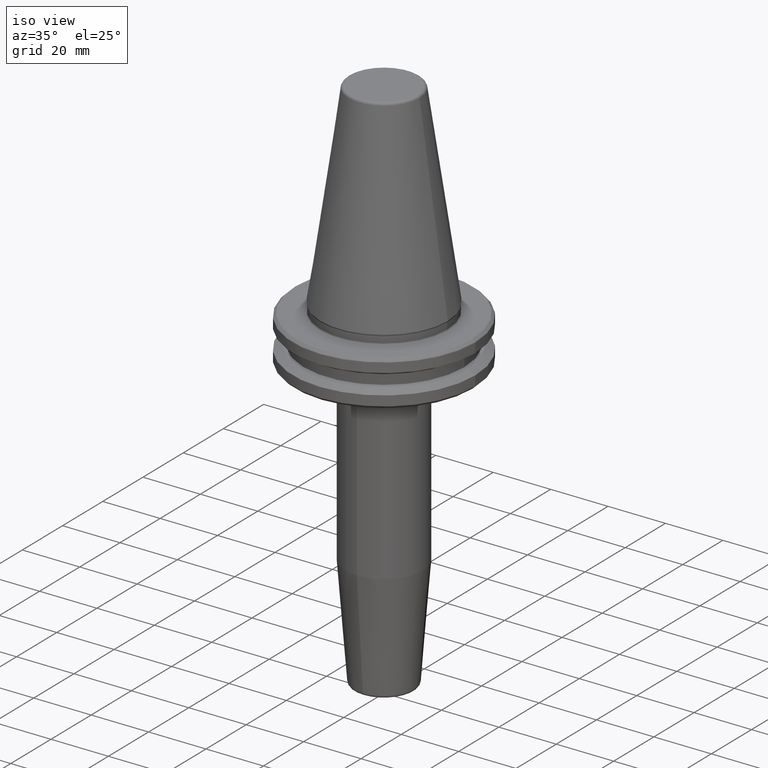
[diagram: clean part render]
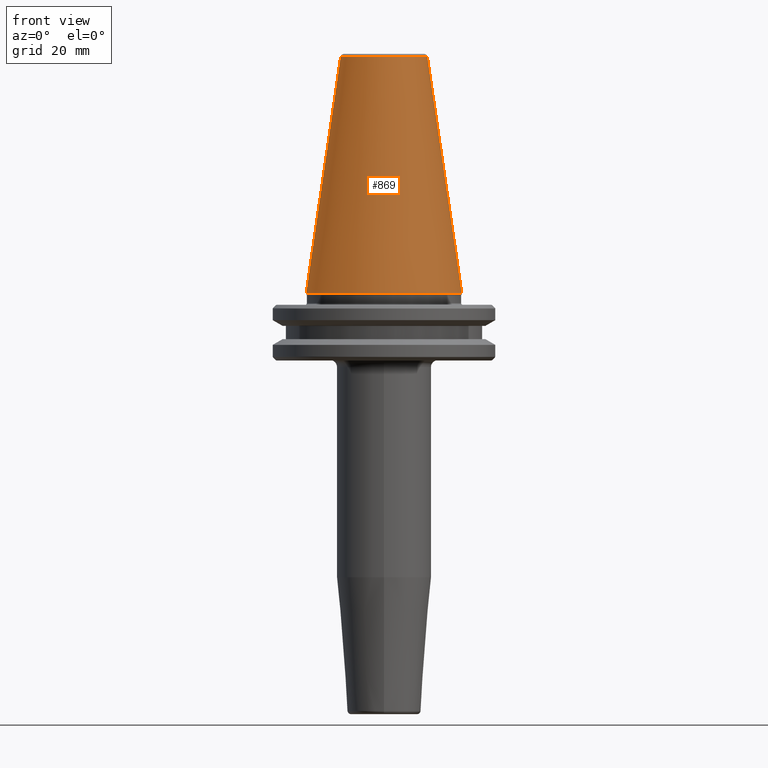
[diagram: tour spotlight — one face highlighted and labeled with its STEP entity id]
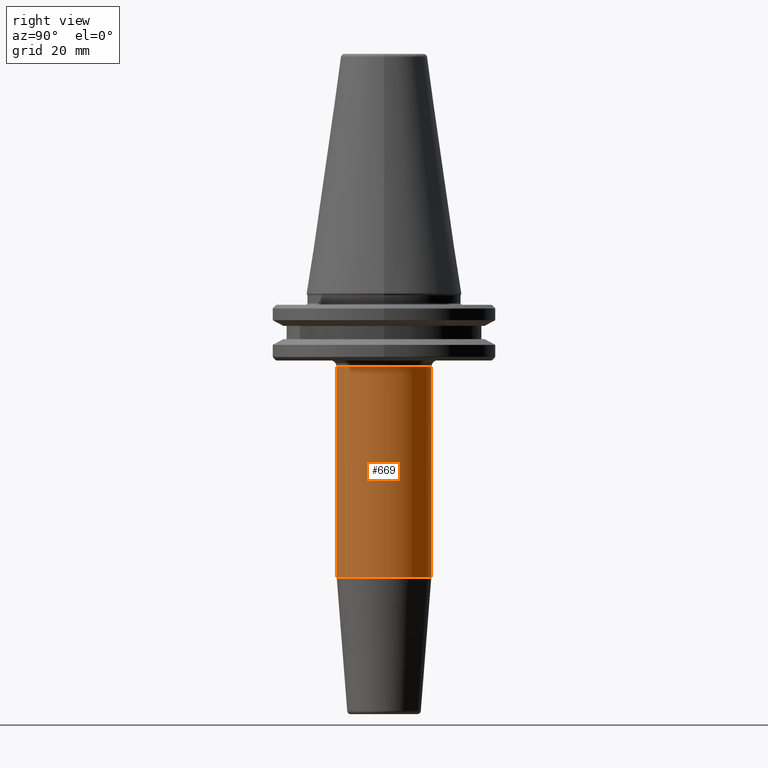
[diagram: tour spotlight — one face highlighted and labeled with its STEP entity id]
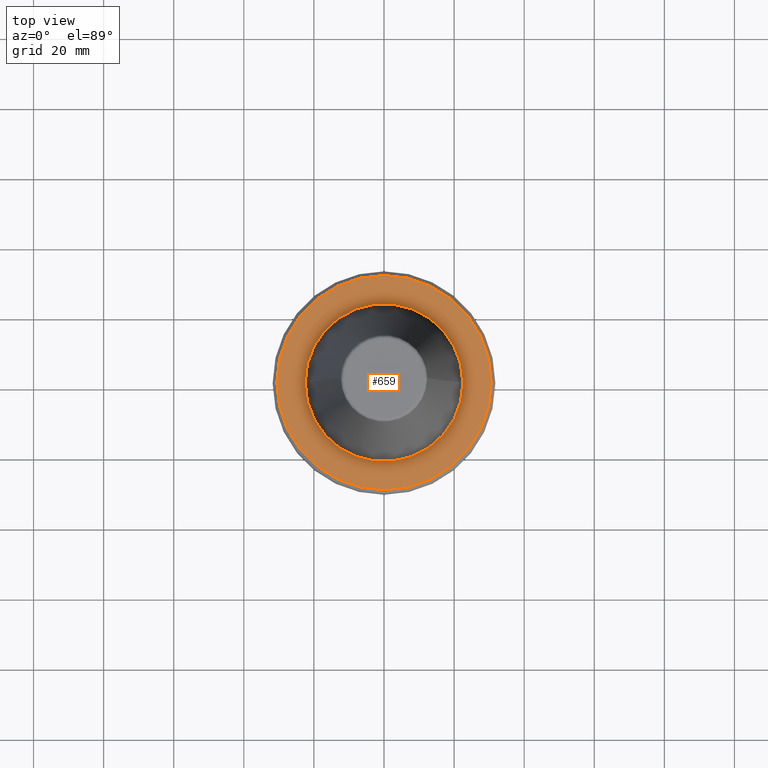
[diagram: tour spotlight — one face highlighted and labeled with its STEP entity id]
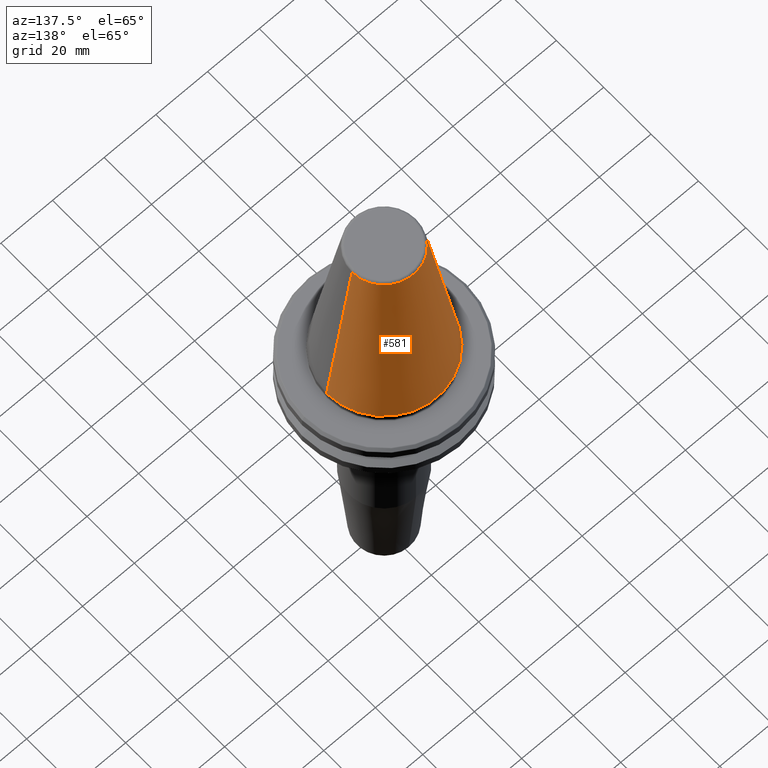
[diagram: tour spotlight — one face highlighted and labeled with its STEP entity id]
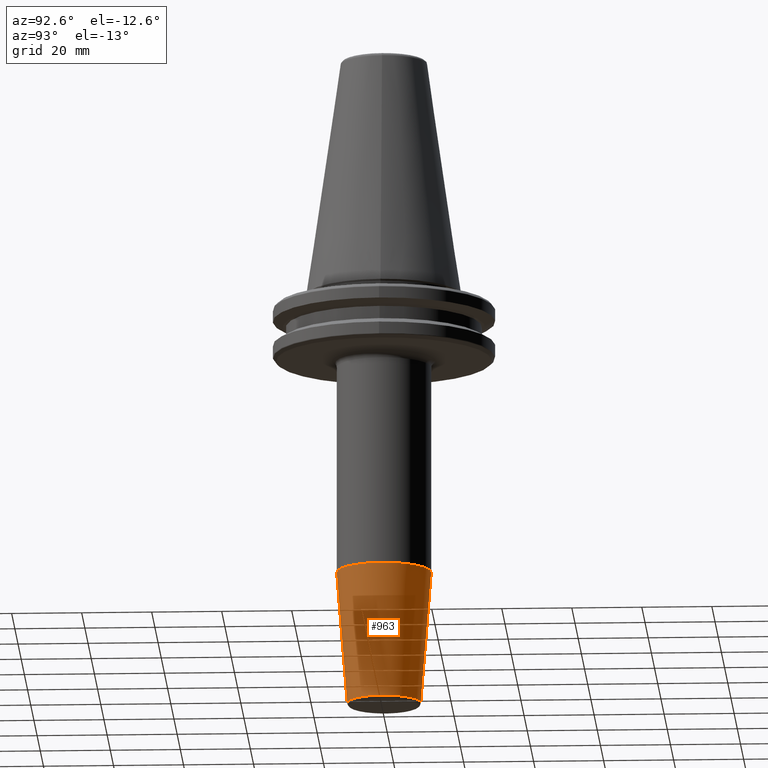
[diagram: tour spotlight — one face highlighted and labeled with its STEP entity id]
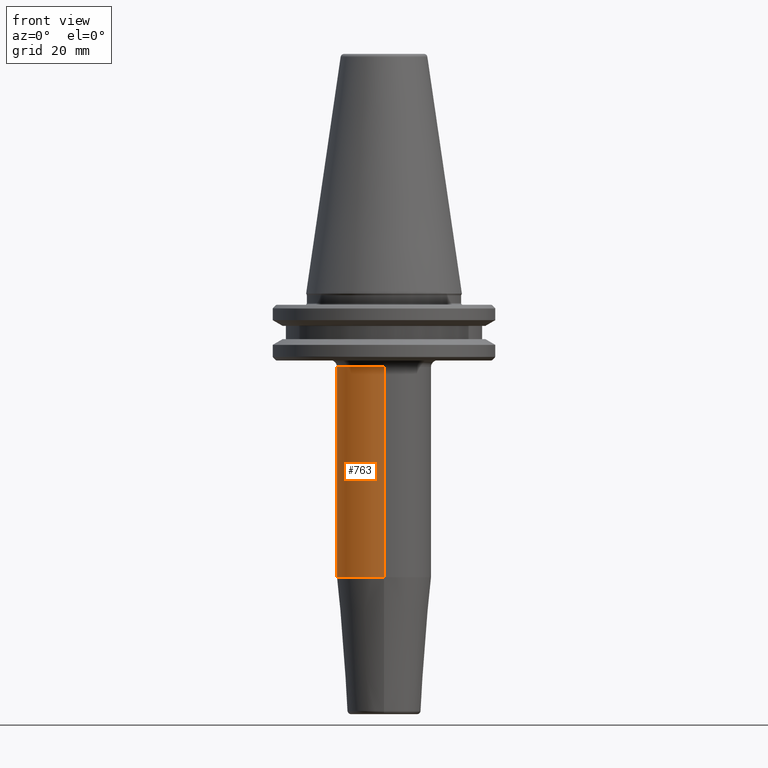
[diagram: tour spotlight — one face highlighted and labeled with its STEP entity id]
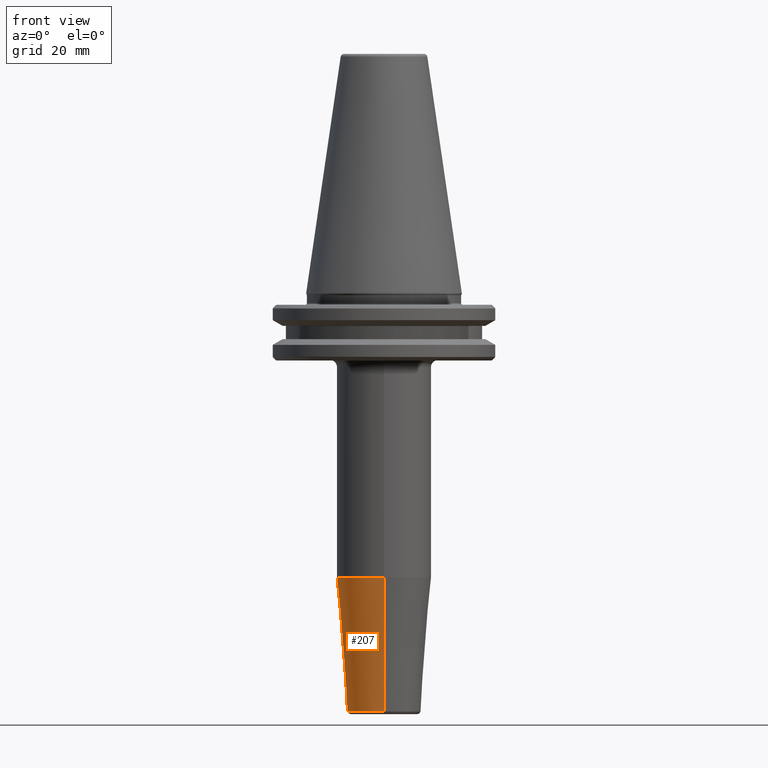
[diagram: tour spotlight — one face highlighted and labeled with its STEP entity id]
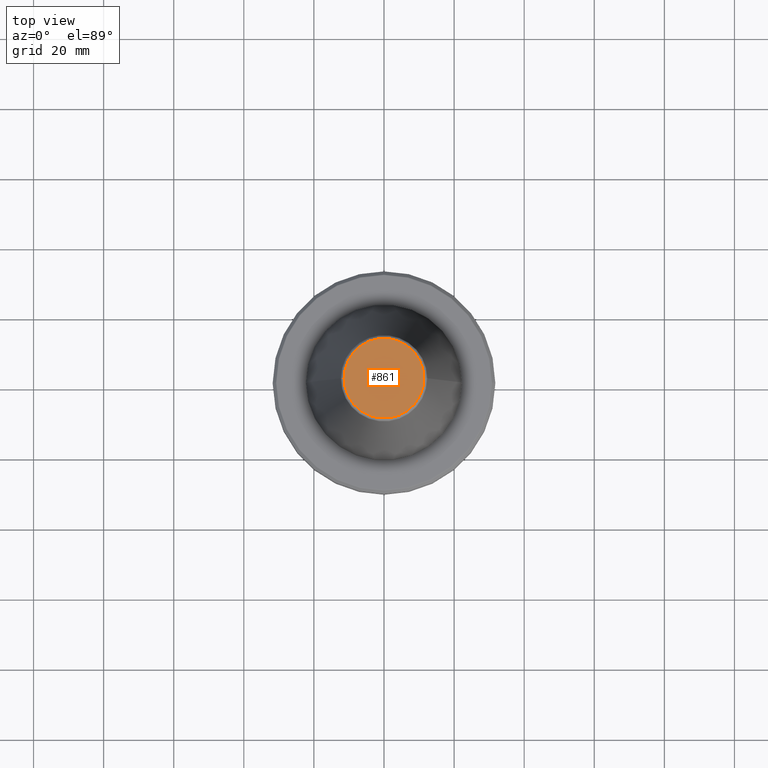
[diagram: tour spotlight — one face highlighted and labeled with its STEP entity id]
A machine part: a face-by-face anatomy tour. The part has 46 B-rep faces; the first image is the clean iso view, then the 8 largest visible faces are spotlighted one at a time (largest first), each with its STEP entity span.

Face 1 — front view, entity #869. In plain terms, the highlighted conical surface has half-angle 8.297 deg.
Definition (entity closure, byte-faithful):
#80 = ORIENTED_EDGE ( 'NONE', *, *, #658, .F. ) ;
#128 = DIRECTION ( 'NONE',  ( -1.000000000000000000, 0.0000000000000000000, 0.0000000000000000000 ) ) ;
#160 = CIRCLE ( 'NONE', #881, 22.22500000000000500 ) ;
#189 = ORIENTED_EDGE ( 'NONE', *, *, #1244, .F. ) ;
#209 = VERTEX_POINT ( 'NONE', #541 ) ;
#215 = CARTESIAN_POINT ( 'NONE',  ( 12.37469537611110800, 2.118620309691397700E-015, 67.54430822726729400 ) ) ;
#231 = CARTESIAN_POINT ( 'NONE',  ( -12.37469537611110800, 0.0000000000000000000, 67.54430822726729400 ) ) ;
#232 = CARTESIAN_POINT ( 'NONE',  ( 0.0000000000000000000, 0.0000000000000000000, 67.54430822726729400 ) ) ;
#237 = DIRECTION ( 'NONE',  ( -0.0000000000000000000, -0.0000000000000000000, 1.000000000000000000 ) ) ;
#333 = CONICAL_SURFACE ( 'NONE', #575, 12.37469537611110800, 0.1448138465474191100 ) ;
#337 = DIRECTION ( 'NONE',  ( 0.0000000000000000000, 0.0000000000000000000, -1.000000000000000000 ) ) ;
#491 = ORIENTED_EDGE ( 'NONE', *, *, #1089, .T. ) ;
#527 = AXIS2_PLACEMENT_3D ( 'NONE', #546, #932, #940 ) ;
#541 = CARTESIAN_POINT ( 'NONE',  ( -22.22500000000000500, 2.721777511104993200E-015, 0.0000000000000000000 ) ) ;
#546 = CARTESIAN_POINT ( 'NONE',  ( 0.0000000000000000000, 0.0000000000000000000, 67.54430822726729400 ) ) ;
#571 = VERTEX_POINT ( 'NONE', #885 ) ;
#575 = AXIS2_PLACEMENT_3D ( 'NONE', #232, #337, #128 ) ;
#632 = VERTEX_POINT ( 'NONE', #215 ) ;
#641 = DIRECTION ( 'NONE',  ( 0.1443082272673071000, 1.767266086135364600E-017, -0.9895327864921743500 ) ) ;
#658 = EDGE_CURVE ( 'NONE', #1099, #632, #1083, .T. ) ;
#665 = VECTOR ( 'NONE', #641, 1000.000000000000000 ) ;
#683 = LINE ( 'NONE', #231, #922 ) ;
#712 = CARTESIAN_POINT ( 'NONE',  ( -12.37469537611110800, 0.0000000000000000000, 67.54430822726729400 ) ) ;
#806 = EDGE_LOOP ( 'NONE', ( #189, #80, #491, #852 ) ) ;
#828 = CARTESIAN_POINT ( 'NONE',  ( 0.0000000000000000000, 0.0000000000000000000, 0.0000000000000000000 ) ) ;
#852 = ORIENTED_EDGE ( 'NONE', *, *, #1104, .T. ) ;
#869 = ADVANCED_FACE ( 'NONE', ( #1136 ), #333, .T. ) ;
#881 = AXIS2_PLACEMENT_3D ( 'NONE', #828, #237, #919 ) ;
#885 = CARTESIAN_POINT ( 'NONE',  ( 22.22500000000000500, 0.0000000000000000000, 0.0000000000000000000 ) ) ;
#914 = DIRECTION ( 'NONE',  ( -0.1443082272673071000, 0.0000000000000000000, -0.9895327864921743500 ) ) ;
#919 = DIRECTION ( 'NONE',  ( 1.000000000000000000, 0.0000000000000000000, 0.0000000000000000000 ) ) ;
#922 = VECTOR ( 'NONE', #914, 1000.000000000000000 ) ;
#930 = CARTESIAN_POINT ( 'NONE',  ( 12.37469537611110800, 1.515463108277802100E-015, 67.54430822726729400 ) ) ;
#932 = DIRECTION ( 'NONE',  ( -0.0000000000000000000, -0.0000000000000000000, 1.000000000000000000 ) ) ;
#940 = DIRECTION ( 'NONE',  ( 1.000000000000000000, 0.0000000000000000000, 0.0000000000000000000 ) ) ;
#1083 = CIRCLE ( 'NONE', #527, 12.37469537611110800 ) ;
#1089 = EDGE_CURVE ( 'NONE', #1099, #209, #683, .T. ) ;
#1099 = VERTEX_POINT ( 'NONE', #712 ) ;
#1104 = EDGE_CURVE ( 'NONE', #209, #571, #160, .T. ) ;
#1136 = FACE_OUTER_BOUND ( 'NONE', #806, .T. ) ;
#1171 = LINE ( 'NONE', #930, #665 ) ;
#1244 = EDGE_CURVE ( 'NONE', #632, #571, #1171, .T. ) ;

Face 2 — right view, entity #669. In plain terms, the highlighted cylindrical surface (partial cylindrical patch) has radius 13.5 mm, axis along (-0, 0, -1).
Definition (entity closure, byte-faithful):
#7 = CARTESIAN_POINT ( 'NONE',  ( 0.0000000000000000000, -5.204200571937971300E-015, -80.95984488719962300 ) ) ;
#10 = EDGE_CURVE ( 'NONE', #1130, #257, #114, .T. ) ;
#12 = CARTESIAN_POINT ( 'NONE',  ( 1.653273178848928400E-015, -13.50000000000001100, -120.0000000000000000 ) ) ;
#48 = EDGE_CURVE ( 'NONE', #257, #296, #900, .T. ) ;
#56 = AXIS2_PLACEMENT_3D ( 'NONE', #860, #1046, #467 ) ;
#93 = LINE ( 'NONE', #12, #625 ) ;
#102 = DIRECTION ( 'NONE',  ( -0.0000000000000000000, 1.946757673717420000E-016, -1.000000000000000000 ) ) ;
#114 = LINE ( 'NONE', #391, #1129 ) ;
#131 = AXIS2_PLACEMENT_3D ( 'NONE', #158, #566, #1140 ) ;
#145 = AXIS2_PLACEMENT_3D ( 'NONE', #7, #770, #1065 ) ;
#158 = CARTESIAN_POINT ( 'NONE',  ( 0.0000000000000000000, -1.688026949495919900E-014, -20.98284271247460700 ) ) ;
#181 = ORIENTED_EDGE ( 'NONE', *, *, #10, .F. ) ;
#257 = VERTEX_POINT ( 'NONE', #518 ) ;
#268 = EDGE_LOOP ( 'NONE', ( #944, #752, #644, #181 ) ) ;
#296 = VERTEX_POINT ( 'NONE', #1048 ) ;
#391 = CARTESIAN_POINT ( 'NONE',  ( 0.0000000000000000000, 13.50000000000001400, -120.0000000000000000 ) ) ;
#467 = DIRECTION ( 'NONE',  ( 0.0000000000000000000, 1.000000000000000000, 0.0000000000000000000 ) ) ;
#492 = EDGE_CURVE ( 'NONE', #681, #296, #93, .T. ) ;
#518 = CARTESIAN_POINT ( 'NONE',  ( 1.653273178848927500E-015, 13.50000000000000000, -80.95984488719962300 ) ) ;
#547 = FACE_OUTER_BOUND ( 'NONE', #268, .T. ) ;
#566 = DIRECTION ( 'NONE',  ( -0.0000000000000000000, 1.946757673717420000E-016, -1.000000000000000000 ) ) ;
#583 = DIRECTION ( 'NONE',  ( -0.0000000000000000000, 1.946757673717420000E-016, -1.000000000000000000 ) ) ;
#625 = VECTOR ( 'NONE', #102, 1000.000000000000000 ) ;
#644 = ORIENTED_EDGE ( 'NONE', *, *, #48, .F. ) ;
#664 = EDGE_CURVE ( 'NONE', #1130, #681, #800, .T. ) ;
#669 = ADVANCED_FACE ( 'NONE', ( #547 ), #1033, .T. ) ;
#681 = VERTEX_POINT ( 'NONE', #1259 ) ;
#752 = ORIENTED_EDGE ( 'NONE', *, *, #492, .T. ) ;
#770 = DIRECTION ( 'NONE',  ( -0.0000000000000000000, 1.946757673717420000E-016, -1.000000000000000000 ) ) ;
#800 = CIRCLE ( 'NONE', #131, 13.50000000000001800 ) ;
#860 = CARTESIAN_POINT ( 'NONE',  ( 0.0000000000000000000, 2.395971582958279500E-015, -120.0000000000000000 ) ) ;
#900 = CIRCLE ( 'NONE', #145, 13.50000000000000500 ) ;
#944 = ORIENTED_EDGE ( 'NONE', *, *, #664, .T. ) ;
#1033 = CYLINDRICAL_SURFACE ( 'NONE', #56, 13.50000000000001200 ) ;
#1046 = DIRECTION ( 'NONE',  ( -0.0000000000000000000, 1.946757673717420000E-016, -1.000000000000000000 ) ) ;
#1048 = CARTESIAN_POINT ( 'NONE',  ( 0.0000000000000000000, -13.50000000000001100, -80.95984488719962300 ) ) ;
#1065 = DIRECTION ( 'NONE',  ( 0.0000000000000000000, 1.000000000000000000, 0.0000000000000000000 ) ) ;
#1129 = VECTOR ( 'NONE', #583, 1000.000000000000000 ) ;
#1130 = VERTEX_POINT ( 'NONE', #1206 ) ;
#1140 = DIRECTION ( 'NONE',  ( 0.0000000000000000000, 1.000000000000000000, 2.569960705150821900E-016 ) ) ;
#1206 = CARTESIAN_POINT ( 'NONE',  ( 0.0000000000000000000, 13.50000000000000000, -20.98284271247460400 ) ) ;
#1259 = CARTESIAN_POINT ( 'NONE',  ( 1.653273178848929800E-015, -13.50000000000003400, -20.98284271247461100 ) ) ;

Face 3 — top view, entity #659. In plain terms, the highlighted planar face has unit normal (0, -0, 1).
Definition (entity closure, byte-faithful):
#3 = CARTESIAN_POINT ( 'NONE',  ( 0.0000000000000000000, 0.0000000000000000000, -3.199999999999994400 ) ) ;
#14 = CIRCLE ( 'NONE', #68, 22.50000000000000000 ) ;
#68 = AXIS2_PLACEMENT_3D ( 'NONE', #3, #186, #395 ) ;
#78 = FACE_BOUND ( 'NONE', #508, .T. ) ;
#82 = DIRECTION ( 'NONE',  ( 0.0000000000000000000, -0.0000000000000000000, 1.000000000000000000 ) ) ;
#111 = CARTESIAN_POINT ( 'NONE',  ( 30.58431457505076200, 0.0000000000000000000, -3.199999999999994400 ) ) ;
#132 = AXIS2_PLACEMENT_3D ( 'NONE', #525, #1191, #627 ) ;
#141 = DIRECTION ( 'NONE',  ( 1.000000000000000000, 0.0000000000000000000, 0.0000000000000000000 ) ) ;
#163 = FACE_OUTER_BOUND ( 'NONE', #396, .T. ) ;
#185 = VERTEX_POINT ( 'NONE', #1100 ) ;
#186 = DIRECTION ( 'NONE',  ( -0.0000000000000000000, -0.0000000000000000000, 1.000000000000000000 ) ) ;
#315 = CARTESIAN_POINT ( 'NONE',  ( -22.50000000000000000, 2.755455298081544800E-015, -3.199999999999996600 ) ) ;
#353 = EDGE_CURVE ( 'NONE', #968, #693, #1072, .T. ) ;
#357 = CARTESIAN_POINT ( 'NONE',  ( 0.0000000000000000000, 0.0000000000000000000, -3.199999999999994400 ) ) ;
#378 = AXIS2_PLACEMENT_3D ( 'NONE', #513, #995, #1069 ) ;
#381 = DIRECTION ( 'NONE',  ( 1.000000000000000000, 0.0000000000000000000, 0.0000000000000000000 ) ) ;
#395 = DIRECTION ( 'NONE',  ( 1.000000000000000000, 0.0000000000000000000, 0.0000000000000000000 ) ) ;
#396 = EDGE_LOOP ( 'NONE', ( #965, #1005 ) ) ;
#409 = AXIS2_PLACEMENT_3D ( 'NONE', #739, #82, #381 ) ;
#508 = EDGE_LOOP ( 'NONE', ( #969, #720 ) ) ;
#513 = CARTESIAN_POINT ( 'NONE',  ( 0.0000000000000000000, 0.0000000000000000000, -3.199999999999994400 ) ) ;
#525 = CARTESIAN_POINT ( 'NONE',  ( 0.0000000000000000000, 0.0000000000000000000, -3.199999999999994400 ) ) ;
#569 = CARTESIAN_POINT ( 'NONE',  ( 22.50000000000000000, 0.0000000000000000000, -3.199999999999996600 ) ) ;
#611 = AXIS2_PLACEMENT_3D ( 'NONE', #357, #837, #141 ) ;
#627 = DIRECTION ( 'NONE',  ( 1.000000000000000000, 0.0000000000000000000, 0.0000000000000000000 ) ) ;
#650 = EDGE_CURVE ( 'NONE', #1013, #185, #928, .T. ) ;
#659 = ADVANCED_FACE ( 'NONE', ( #163, #78 ), #733, .T. ) ;
#673 = EDGE_CURVE ( 'NONE', #693, #968, #14, .T. ) ;
#693 = VERTEX_POINT ( 'NONE', #569 ) ;
#720 = ORIENTED_EDGE ( 'NONE', *, *, #353, .F. ) ;
#733 = PLANE ( 'NONE',  #409 ) ;
#739 = CARTESIAN_POINT ( 'NONE',  ( 0.0000000000000000000, 0.0000000000000000000, -3.200000000000000200 ) ) ;
#837 = DIRECTION ( 'NONE',  ( -0.0000000000000000000, -0.0000000000000000000, 1.000000000000000000 ) ) ;
#928 = CIRCLE ( 'NONE', #611, 30.58431457505076200 ) ;
#965 = ORIENTED_EDGE ( 'NONE', *, *, #650, .T. ) ;
#968 = VERTEX_POINT ( 'NONE', #315 ) ;
#969 = ORIENTED_EDGE ( 'NONE', *, *, #673, .F. ) ;
#995 = DIRECTION ( 'NONE',  ( -0.0000000000000000000, -0.0000000000000000000, 1.000000000000000000 ) ) ;
#1005 = ORIENTED_EDGE ( 'NONE', *, *, #1080, .T. ) ;
#1013 = VERTEX_POINT ( 'NONE', #111 ) ;
#1069 = DIRECTION ( 'NONE',  ( 1.000000000000000000, 0.0000000000000000000, 0.0000000000000000000 ) ) ;
#1072 = CIRCLE ( 'NONE', #378, 22.50000000000000000 ) ;
#1080 = EDGE_CURVE ( 'NONE', #185, #1013, #1204, .T. ) ;
#1100 = CARTESIAN_POINT ( 'NONE',  ( -30.58431457505076200, 3.762817415969875600E-015, -3.199999999999994400 ) ) ;
#1191 = DIRECTION ( 'NONE',  ( -0.0000000000000000000, -0.0000000000000000000, 1.000000000000000000 ) ) ;
#1204 = CIRCLE ( 'NONE', #132, 30.58431457505076200 ) ;

Face 4 — auxiliary view, entity #581. In plain terms, the highlighted conical surface has half-angle 8.297 deg.
Definition (entity closure, byte-faithful):
#11 = DIRECTION ( 'NONE',  ( -0.0000000000000000000, -0.0000000000000000000, 1.000000000000000000 ) ) ;
#26 = DIRECTION ( 'NONE',  ( -0.0000000000000000000, -0.0000000000000000000, 1.000000000000000000 ) ) ;
#31 = EDGE_LOOP ( 'NONE', ( #1245, #1256, #892, #129 ) ) ;
#36 = FACE_OUTER_BOUND ( 'NONE', #31, .T. ) ;
#129 = ORIENTED_EDGE ( 'NONE', *, *, #1089, .F. ) ;
#190 = AXIS2_PLACEMENT_3D ( 'NONE', #619, #26, #707 ) ;
#209 = VERTEX_POINT ( 'NONE', #541 ) ;
#215 = CARTESIAN_POINT ( 'NONE',  ( 12.37469537611110800, 2.118620309691397700E-015, 67.54430822726729400 ) ) ;
#231 = CARTESIAN_POINT ( 'NONE',  ( -12.37469537611110800, 0.0000000000000000000, 67.54430822726729400 ) ) ;
#469 = CIRCLE ( 'NONE', #190, 22.22500000000000500 ) ;
#482 = EDGE_CURVE ( 'NONE', #632, #1099, #1137, .T. ) ;
#506 = DIRECTION ( 'NONE',  ( 1.000000000000000000, 0.0000000000000000000, 0.0000000000000000000 ) ) ;
#541 = CARTESIAN_POINT ( 'NONE',  ( -22.22500000000000500, 2.721777511104993200E-015, 0.0000000000000000000 ) ) ;
#571 = VERTEX_POINT ( 'NONE', #885 ) ;
#581 = ADVANCED_FACE ( 'NONE', ( #36 ), #1209, .T. ) ;
#619 = CARTESIAN_POINT ( 'NONE',  ( 0.0000000000000000000, 0.0000000000000000000, 0.0000000000000000000 ) ) ;
#632 = VERTEX_POINT ( 'NONE', #215 ) ;
#637 = DIRECTION ( 'NONE',  ( 0.0000000000000000000, 0.0000000000000000000, -1.000000000000000000 ) ) ;
#641 = DIRECTION ( 'NONE',  ( 0.1443082272673071000, 1.767266086135364600E-017, -0.9895327864921743500 ) ) ;
#645 = CARTESIAN_POINT ( 'NONE',  ( 0.0000000000000000000, 0.0000000000000000000, 67.54430822726729400 ) ) ;
#665 = VECTOR ( 'NONE', #641, 1000.000000000000000 ) ;
#683 = LINE ( 'NONE', #231, #922 ) ;
#707 = DIRECTION ( 'NONE',  ( 1.000000000000000000, 0.0000000000000000000, 0.0000000000000000000 ) ) ;
#712 = CARTESIAN_POINT ( 'NONE',  ( -12.37469537611110800, 0.0000000000000000000, 67.54430822726729400 ) ) ;
#867 = AXIS2_PLACEMENT_3D ( 'NONE', #645, #637, #1027 ) ;
#885 = CARTESIAN_POINT ( 'NONE',  ( 22.22500000000000500, 0.0000000000000000000, 0.0000000000000000000 ) ) ;
#886 = CARTESIAN_POINT ( 'NONE',  ( 0.0000000000000000000, 0.0000000000000000000, 67.54430822726729400 ) ) ;
#892 = ORIENTED_EDGE ( 'NONE', *, *, #1054, .T. ) ;
#914 = DIRECTION ( 'NONE',  ( -0.1443082272673071000, 0.0000000000000000000, -0.9895327864921743500 ) ) ;
#922 = VECTOR ( 'NONE', #914, 1000.000000000000000 ) ;
#930 = CARTESIAN_POINT ( 'NONE',  ( 12.37469537611110800, 1.515463108277802100E-015, 67.54430822726729400 ) ) ;
#1027 = DIRECTION ( 'NONE',  ( -1.000000000000000000, 0.0000000000000000000, 0.0000000000000000000 ) ) ;
#1054 = EDGE_CURVE ( 'NONE', #571, #209, #469, .T. ) ;
#1089 = EDGE_CURVE ( 'NONE', #1099, #209, #683, .T. ) ;
#1090 = AXIS2_PLACEMENT_3D ( 'NONE', #886, #11, #506 ) ;
#1099 = VERTEX_POINT ( 'NONE', #712 ) ;
#1137 = CIRCLE ( 'NONE', #1090, 12.37469537611110800 ) ;
#1171 = LINE ( 'NONE', #930, #665 ) ;
#1209 = CONICAL_SURFACE ( 'NONE', #867, 12.37469537611110800, 0.1448138465474191100 ) ;
#1244 = EDGE_CURVE ( 'NONE', #632, #571, #1171, .T. ) ;
#1245 = ORIENTED_EDGE ( 'NONE', *, *, #482, .F. ) ;
#1256 = ORIENTED_EDGE ( 'NONE', *, *, #1244, .T. ) ;

Face 5 — auxiliary view, entity #963. In plain terms, the highlighted conical surface has half-angle 4.5 deg.
Definition (entity closure, byte-faithful):
#7 = CARTESIAN_POINT ( 'NONE',  ( 0.0000000000000000000, -5.204200571937971300E-015, -80.95984488719962300 ) ) ;
#22 = CARTESIAN_POINT ( 'NONE',  ( 0.0000000000000000000, 2.216569900254646300E-015, -119.0784590957278200 ) ) ;
#29 = ORIENTED_EDGE ( 'NONE', *, *, #278, .T. ) ;
#48 = EDGE_CURVE ( 'NONE', #257, #296, #900, .T. ) ;
#71 = ORIENTED_EDGE ( 'NONE', *, *, #48, .T. ) ;
#94 = LINE ( 'NONE', #153, #1112 ) ;
#145 = AXIS2_PLACEMENT_3D ( 'NONE', #7, #770, #1065 ) ;
#153 = CARTESIAN_POINT ( 'NONE',  ( 0.0000000000000000000, -10.49999999999999600, -119.0784590957278200 ) ) ;
#227 = VECTOR ( 'NONE', #857, 1000.000000000000000 ) ;
#257 = VERTEX_POINT ( 'NONE', #518 ) ;
#270 = CONICAL_SURFACE ( 'NONE', #429, 10.49999999999999800, 0.07853981633973659800 ) ;
#272 = EDGE_CURVE ( 'NONE', #1059, #678, #1253, .T. ) ;
#278 = EDGE_CURVE ( 'NONE', #1059, #257, #465, .T. ) ;
#295 = EDGE_CURVE ( 'NONE', #678, #296, #94, .T. ) ;
#296 = VERTEX_POINT ( 'NONE', #1048 ) ;
#392 = ORIENTED_EDGE ( 'NONE', *, *, #272, .F. ) ;
#398 = CARTESIAN_POINT ( 'NONE',  ( 1.285879139104720600E-015, -10.49999999999999600, -119.0784590957278200 ) ) ;
#429 = AXIS2_PLACEMENT_3D ( 'NONE', #537, #1025, #935 ) ;
#465 = LINE ( 'NONE', #954, #227 ) ;
#518 = CARTESIAN_POINT ( 'NONE',  ( 1.653273178848927500E-015, 13.50000000000000000, -80.95984488719962300 ) ) ;
#537 = CARTESIAN_POINT ( 'NONE',  ( 0.0000000000000000000, 2.216569900254646300E-015, -119.0784590957278200 ) ) ;
#572 = DIRECTION ( 'NONE',  ( 0.0000000000000000000, -0.07845909572783693600, 0.9969173337331286300 ) ) ;
#674 = EDGE_LOOP ( 'NONE', ( #392, #29, #71, #942 ) ) ;
#678 = VERTEX_POINT ( 'NONE', #398 ) ;
#710 = DIRECTION ( 'NONE',  ( -0.0000000000000000000, 1.946757673717420000E-016, -1.000000000000000000 ) ) ;
#770 = DIRECTION ( 'NONE',  ( -0.0000000000000000000, 1.946757673717420000E-016, -1.000000000000000000 ) ) ;
#814 = CARTESIAN_POINT ( 'NONE',  ( 0.0000000000000000000, 10.50000000000000000, -119.0784590957278200 ) ) ;
#833 = AXIS2_PLACEMENT_3D ( 'NONE', #22, #710, #1120 ) ;
#857 = DIRECTION ( 'NONE',  ( 9.608468044709104300E-018, 0.07845909572783654800, 0.9969173337331286300 ) ) ;
#900 = CIRCLE ( 'NONE', #145, 13.50000000000000500 ) ;
#935 = DIRECTION ( 'NONE',  ( 0.0000000000000000000, -1.000000000000000000, 0.0000000000000000000 ) ) ;
#942 = ORIENTED_EDGE ( 'NONE', *, *, #295, .F. ) ;
#954 = CARTESIAN_POINT ( 'NONE',  ( 1.285879139104720600E-015, 10.50000000000000000, -119.0784590957278200 ) ) ;
#963 = ADVANCED_FACE ( 'NONE', ( #1106 ), #270, .T. ) ;
#1025 = DIRECTION ( 'NONE',  ( 0.0000000000000000000, -1.946757673717420000E-016, 1.000000000000000000 ) ) ;
#1048 = CARTESIAN_POINT ( 'NONE',  ( 0.0000000000000000000, -13.50000000000001100, -80.95984488719962300 ) ) ;
#1059 = VERTEX_POINT ( 'NONE', #814 ) ;
#1065 = DIRECTION ( 'NONE',  ( 0.0000000000000000000, 1.000000000000000000, 0.0000000000000000000 ) ) ;
#1106 = FACE_OUTER_BOUND ( 'NONE', #674, .T. ) ;
#1112 = VECTOR ( 'NONE', #572, 1000.000000000000000 ) ;
#1120 = DIRECTION ( 'NONE',  ( 0.0000000000000000000, 1.000000000000000000, 0.0000000000000000000 ) ) ;
#1253 = CIRCLE ( 'NONE', #833, 10.49999999999999800 ) ;

Face 6 — front view, entity #763. In plain terms, the highlighted cylindrical surface (partial cylindrical patch) has radius 13.5 mm, axis along (-0, 0, -1).
Definition (entity closure, byte-faithful):
#10 = EDGE_CURVE ( 'NONE', #1130, #257, #114, .T. ) ;
#12 = CARTESIAN_POINT ( 'NONE',  ( 1.653273178848928400E-015, -13.50000000000001100, -120.0000000000000000 ) ) ;
#42 = DIRECTION ( 'NONE',  ( 0.0000000000000000000, 1.000000000000000000, 0.0000000000000000000 ) ) ;
#57 = ORIENTED_EDGE ( 'NONE', *, *, #10, .T. ) ;
#64 = CIRCLE ( 'NONE', #554, 13.50000000000000500 ) ;
#93 = LINE ( 'NONE', #12, #625 ) ;
#102 = DIRECTION ( 'NONE',  ( -0.0000000000000000000, 1.946757673717420000E-016, -1.000000000000000000 ) ) ;
#114 = LINE ( 'NONE', #391, #1129 ) ;
#159 = ORIENTED_EDGE ( 'NONE', *, *, #471, .T. ) ;
#193 = CARTESIAN_POINT ( 'NONE',  ( 0.0000000000000000000, -1.688026949495919900E-014, -20.98284271247460700 ) ) ;
#199 = DIRECTION ( 'NONE',  ( -0.0000000000000000000, 1.946757673717420000E-016, -1.000000000000000000 ) ) ;
#241 = CIRCLE ( 'NONE', #1145, 13.50000000000001800 ) ;
#257 = VERTEX_POINT ( 'NONE', #518 ) ;
#296 = VERTEX_POINT ( 'NONE', #1048 ) ;
#391 = CARTESIAN_POINT ( 'NONE',  ( 0.0000000000000000000, 13.50000000000001400, -120.0000000000000000 ) ) ;
#407 = DIRECTION ( 'NONE',  ( 0.0000000000000000000, 1.000000000000000000, 2.569960705150821900E-016 ) ) ;
#432 = EDGE_LOOP ( 'NONE', ( #1017, #159, #57, #1250 ) ) ;
#471 = EDGE_CURVE ( 'NONE', #681, #1130, #241, .T. ) ;
#492 = EDGE_CURVE ( 'NONE', #681, #296, #93, .T. ) ;
#518 = CARTESIAN_POINT ( 'NONE',  ( 1.653273178848927500E-015, 13.50000000000000000, -80.95984488719962300 ) ) ;
#554 = AXIS2_PLACEMENT_3D ( 'NONE', #1207, #636, #42 ) ;
#583 = DIRECTION ( 'NONE',  ( -0.0000000000000000000, 1.946757673717420000E-016, -1.000000000000000000 ) ) ;
#604 = DIRECTION ( 'NONE',  ( 0.0000000000000000000, 1.000000000000000000, 0.0000000000000000000 ) ) ;
#625 = VECTOR ( 'NONE', #102, 1000.000000000000000 ) ;
#636 = DIRECTION ( 'NONE',  ( -0.0000000000000000000, 1.946757673717420000E-016, -1.000000000000000000 ) ) ;
#681 = VERTEX_POINT ( 'NONE', #1259 ) ;
#698 = CYLINDRICAL_SURFACE ( 'NONE', #1115, 13.50000000000001200 ) ;
#763 = ADVANCED_FACE ( 'NONE', ( #970 ), #698, .T. ) ;
#934 = EDGE_CURVE ( 'NONE', #296, #257, #64, .T. ) ;
#970 = FACE_OUTER_BOUND ( 'NONE', #432, .T. ) ;
#1017 = ORIENTED_EDGE ( 'NONE', *, *, #492, .F. ) ;
#1048 = CARTESIAN_POINT ( 'NONE',  ( 0.0000000000000000000, -13.50000000000001100, -80.95984488719962300 ) ) ;
#1087 = DIRECTION ( 'NONE',  ( -0.0000000000000000000, 1.946757673717420000E-016, -1.000000000000000000 ) ) ;
#1115 = AXIS2_PLACEMENT_3D ( 'NONE', #1173, #1087, #604 ) ;
#1129 = VECTOR ( 'NONE', #583, 1000.000000000000000 ) ;
#1130 = VERTEX_POINT ( 'NONE', #1206 ) ;
#1145 = AXIS2_PLACEMENT_3D ( 'NONE', #193, #199, #407 ) ;
#1173 = CARTESIAN_POINT ( 'NONE',  ( 0.0000000000000000000, 2.395971582958279500E-015, -120.0000000000000000 ) ) ;
#1206 = CARTESIAN_POINT ( 'NONE',  ( 0.0000000000000000000, 13.50000000000000000, -20.98284271247460400 ) ) ;
#1207 = CARTESIAN_POINT ( 'NONE',  ( 0.0000000000000000000, -5.204200571937971300E-015, -80.95984488719962300 ) ) ;
#1250 = ORIENTED_EDGE ( 'NONE', *, *, #934, .F. ) ;
#1259 = CARTESIAN_POINT ( 'NONE',  ( 1.653273178848929800E-015, -13.50000000000003400, -20.98284271247461100 ) ) ;

Face 7 — front view, entity #207. In plain terms, the highlighted conical surface has half-angle 4.5 deg.
Definition (entity closure, byte-faithful):
#42 = DIRECTION ( 'NONE',  ( 0.0000000000000000000, 1.000000000000000000, 0.0000000000000000000 ) ) ;
#64 = CIRCLE ( 'NONE', #554, 13.50000000000000500 ) ;
#94 = LINE ( 'NONE', #153, #1112 ) ;
#153 = CARTESIAN_POINT ( 'NONE',  ( 0.0000000000000000000, -10.49999999999999600, -119.0784590957278200 ) ) ;
#207 = ADVANCED_FACE ( 'NONE', ( #1038 ), #494, .T. ) ;
#227 = VECTOR ( 'NONE', #857, 1000.000000000000000 ) ;
#254 = CARTESIAN_POINT ( 'NONE',  ( 0.0000000000000000000, 2.216569900254646300E-015, -119.0784590957278200 ) ) ;
#257 = VERTEX_POINT ( 'NONE', #518 ) ;
#259 = CIRCLE ( 'NONE', #310, 10.49999999999999800 ) ;
#278 = EDGE_CURVE ( 'NONE', #1059, #257, #465, .T. ) ;
#280 = EDGE_LOOP ( 'NONE', ( #300, #1223, #666, #461 ) ) ;
#295 = EDGE_CURVE ( 'NONE', #678, #296, #94, .T. ) ;
#296 = VERTEX_POINT ( 'NONE', #1048 ) ;
#300 = ORIENTED_EDGE ( 'NONE', *, *, #278, .F. ) ;
#310 = AXIS2_PLACEMENT_3D ( 'NONE', #254, #354, #501 ) ;
#350 = CARTESIAN_POINT ( 'NONE',  ( 0.0000000000000000000, 2.216569900254646300E-015, -119.0784590957278200 ) ) ;
#354 = DIRECTION ( 'NONE',  ( -0.0000000000000000000, 1.946757673717420000E-016, -1.000000000000000000 ) ) ;
#398 = CARTESIAN_POINT ( 'NONE',  ( 1.285879139104720600E-015, -10.49999999999999600, -119.0784590957278200 ) ) ;
#461 = ORIENTED_EDGE ( 'NONE', *, *, #934, .T. ) ;
#465 = LINE ( 'NONE', #954, #227 ) ;
#494 = CONICAL_SURFACE ( 'NONE', #1188, 10.49999999999999800, 0.07853981633973659800 ) ;
#501 = DIRECTION ( 'NONE',  ( 0.0000000000000000000, 1.000000000000000000, 0.0000000000000000000 ) ) ;
#518 = CARTESIAN_POINT ( 'NONE',  ( 1.653273178848927500E-015, 13.50000000000000000, -80.95984488719962300 ) ) ;
#535 = DIRECTION ( 'NONE',  ( 0.0000000000000000000, -1.000000000000000000, 0.0000000000000000000 ) ) ;
#554 = AXIS2_PLACEMENT_3D ( 'NONE', #1207, #636, #42 ) ;
#572 = DIRECTION ( 'NONE',  ( 0.0000000000000000000, -0.07845909572783693600, 0.9969173337331286300 ) ) ;
#636 = DIRECTION ( 'NONE',  ( -0.0000000000000000000, 1.946757673717420000E-016, -1.000000000000000000 ) ) ;
#666 = ORIENTED_EDGE ( 'NONE', *, *, #295, .T. ) ;
#678 = VERTEX_POINT ( 'NONE', #398 ) ;
#725 = EDGE_CURVE ( 'NONE', #678, #1059, #259, .T. ) ;
#814 = CARTESIAN_POINT ( 'NONE',  ( 0.0000000000000000000, 10.50000000000000000, -119.0784590957278200 ) ) ;
#857 = DIRECTION ( 'NONE',  ( 9.608468044709104300E-018, 0.07845909572783654800, 0.9969173337331286300 ) ) ;
#918 = DIRECTION ( 'NONE',  ( 0.0000000000000000000, -1.946757673717420000E-016, 1.000000000000000000 ) ) ;
#934 = EDGE_CURVE ( 'NONE', #296, #257, #64, .T. ) ;
#954 = CARTESIAN_POINT ( 'NONE',  ( 1.285879139104720600E-015, 10.50000000000000000, -119.0784590957278200 ) ) ;
#1038 = FACE_OUTER_BOUND ( 'NONE', #280, .T. ) ;
#1048 = CARTESIAN_POINT ( 'NONE',  ( 0.0000000000000000000, -13.50000000000001100, -80.95984488719962300 ) ) ;
#1059 = VERTEX_POINT ( 'NONE', #814 ) ;
#1112 = VECTOR ( 'NONE', #572, 1000.000000000000000 ) ;
#1188 = AXIS2_PLACEMENT_3D ( 'NONE', #350, #918, #535 ) ;
#1207 = CARTESIAN_POINT ( 'NONE',  ( 0.0000000000000000000, -5.204200571937971300E-015, -80.95984488719962300 ) ) ;
#1223 = ORIENTED_EDGE ( 'NONE', *, *, #725, .F. ) ;

Face 8 — top view, entity #861. In plain terms, the highlighted planar face has unit normal (0, -0, 1).
Definition (entity closure, byte-faithful):
#27 = DIRECTION ( 'NONE',  ( -0.0000000000000000000, -0.0000000000000000000, 1.000000000000000000 ) ) ;
#107 = DIRECTION ( 'NONE',  ( 1.000000000000000000, 0.0000000000000000000, 0.0000000000000000000 ) ) ;
#120 = ORIENTED_EDGE ( 'NONE', *, *, #630, .T. ) ;
#125 = PLANE ( 'NONE',  #626 ) ;
#218 = CARTESIAN_POINT ( 'NONE',  ( 0.0000000000000000000, 0.0000000000000000000, 68.40000000000000600 ) ) ;
#332 = CARTESIAN_POINT ( 'NONE',  ( 0.0000000000000000000, -8.337524199435086500E-014, 68.39999999999999100 ) ) ;
#408 = DIRECTION ( 'NONE',  ( -0.0000000000000000000, -0.0000000000000000000, 1.000000000000000000 ) ) ;
#413 = VERTEX_POINT ( 'NONE', #533 ) ;
#507 = EDGE_CURVE ( 'NONE', #413, #677, #1070, .T. ) ;
#533 = CARTESIAN_POINT ( 'NONE',  ( 11.38516258961893100, 0.0000000000000000000, 68.40000000000000600 ) ) ;
#626 = AXIS2_PLACEMENT_3D ( 'NONE', #332, #1192, #628 ) ;
#628 = DIRECTION ( 'NONE',  ( 1.000000000000000000, 0.0000000000000000000, 0.0000000000000000000 ) ) ;
#630 = EDGE_CURVE ( 'NONE', #677, #413, #726, .T. ) ;
#677 = VERTEX_POINT ( 'NONE', #684 ) ;
#684 = CARTESIAN_POINT ( 'NONE',  ( -11.38516258961893100, 1.454871700296352000E-015, 68.40000000000000600 ) ) ;
#726 = CIRCLE ( 'NONE', #779, 11.38516258961893100 ) ;
#779 = AXIS2_PLACEMENT_3D ( 'NONE', #218, #27, #911 ) ;
#861 = ADVANCED_FACE ( 'NONE', ( #1185 ), #125, .T. ) ;
#911 = DIRECTION ( 'NONE',  ( 1.000000000000000000, 0.0000000000000000000, 0.0000000000000000000 ) ) ;
#1026 = AXIS2_PLACEMENT_3D ( 'NONE', #1079, #408, #107 ) ;
#1070 = CIRCLE ( 'NONE', #1026, 11.38516258961893100 ) ;
#1079 = CARTESIAN_POINT ( 'NONE',  ( 0.0000000000000000000, 0.0000000000000000000, 68.40000000000000600 ) ) ;
#1155 = ORIENTED_EDGE ( 'NONE', *, *, #507, .T. ) ;
#1185 = FACE_OUTER_BOUND ( 'NONE', #1198, .T. ) ;
#1192 = DIRECTION ( 'NONE',  ( 0.0000000000000000000, -0.0000000000000000000, 1.000000000000000000 ) ) ;
#1198 = EDGE_LOOP ( 'NONE', ( #1155, #120 ) ) ;